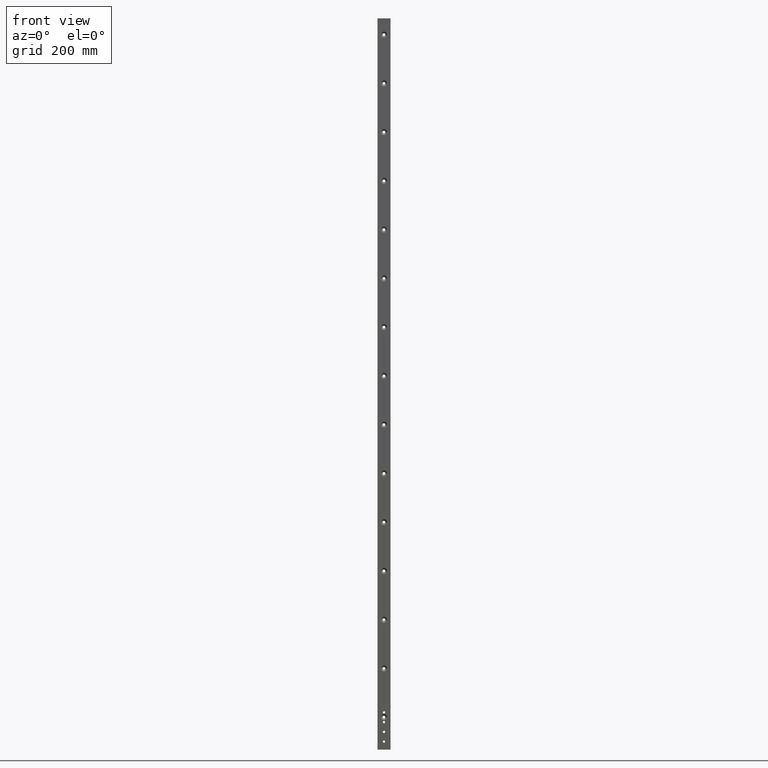
[diagram: clean part render]
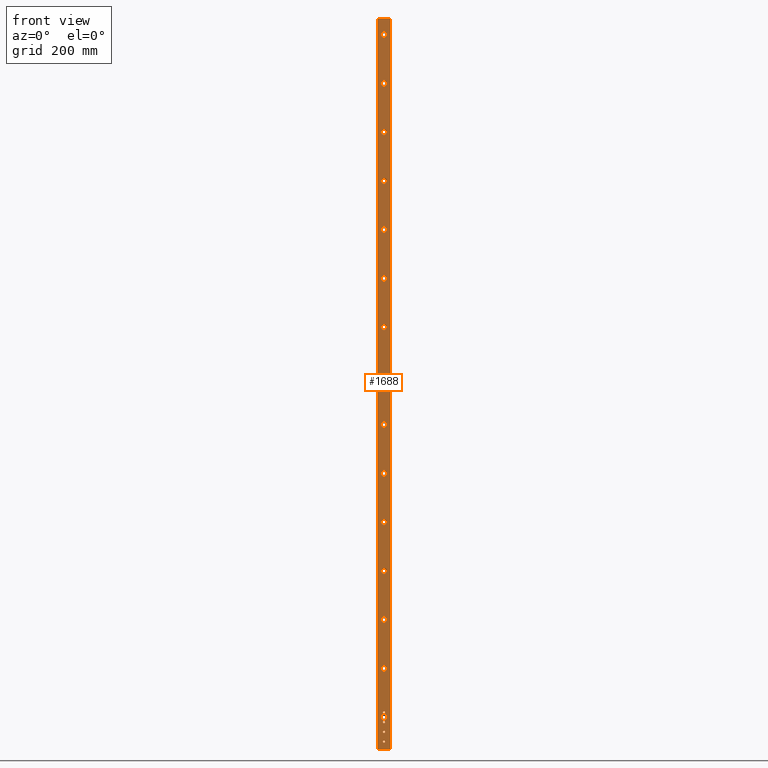
[diagram: same view with one face highlighted and labeled with its STEP entity id]
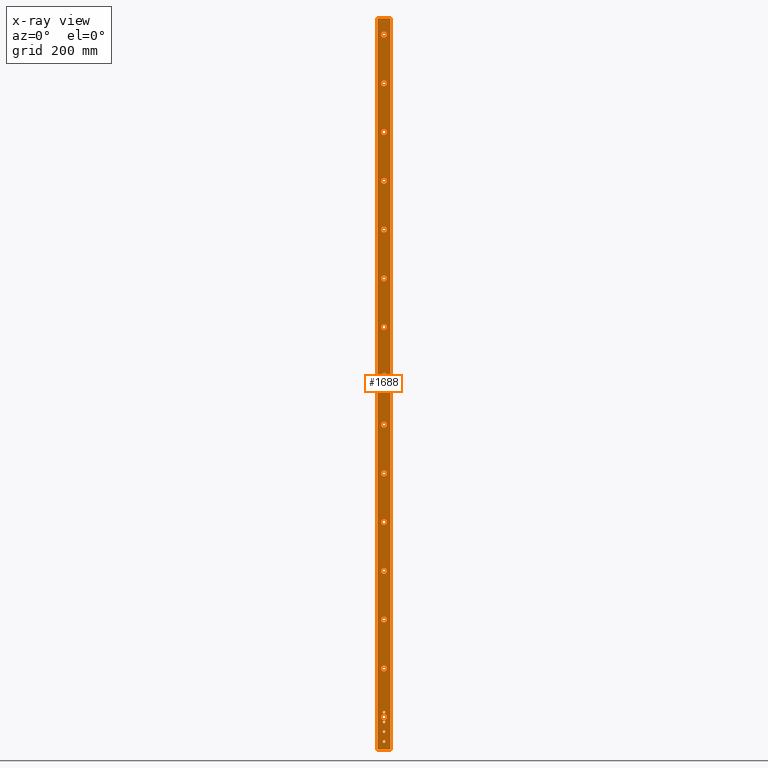
[diagram: x-ray of the same camera — body ghosted, the highlighted face saturated]
A machine part, front view. The second image highlights one B-rep face of the part: STEP entity #1688.
The next image is the same camera in x-ray: the body ghosted, the highlighted face saturated — about 0% of this face is hidden behind the body in this view.
In plain terms, the highlighted planar face has unit normal (0, -1, 0).
Its self-contained STEP definition (entity closure, byte-faithful):
#5 = CIRCLE ( 'NONE', #2308, 9.250000000000021300 ) ;
#14 = ORIENTED_EDGE ( 'NONE', *, *, #378, .F. ) ;
#32 = AXIS2_PLACEMENT_3D ( 'NONE', #677, #1135, #2180 ) ;
#54 = CARTESIAN_POINT ( 'NONE',  ( 6.958926556867956300E-032, -8.023096076392750600E-016, -499.9999999999999400 ) ) ;
#56 = FACE_BOUND ( 'NONE', #916, .T. ) ;
#63 = DIRECTION ( 'NONE',  ( 8.673617379884034200E-017, -1.000000000000000000, -0.0000000000000000000 ) ) ;
#68 = CIRCLE ( 'NONE', #952, 9.250000000000021300 ) ;
#85 = VERTEX_POINT ( 'NONE', #2253 ) ;
#108 = VERTEX_POINT ( 'NONE', #776 ) ;
#110 = EDGE_CURVE ( 'NONE', #1397, #2719, #959, .T. ) ;
#128 = DIRECTION ( 'NONE',  ( 8.673617379884034200E-017, -1.000000000000000000, -0.0000000000000000000 ) ) ;
#135 = AXIS2_PLACEMENT_3D ( 'NONE', #504, #2201, #1121 ) ;
#142 = CARTESIAN_POINT ( 'NONE',  ( -9.250000000000021300, -1.604619215278550100E-015, -1700.000000000000000 ) ) ;
#144 = ORIENTED_EDGE ( 'NONE', *, *, #2481, .F. ) ;
#145 = VERTEX_POINT ( 'NONE', #2296 ) ;
#152 = VERTEX_POINT ( 'NONE', #142 ) ;
#160 = DIRECTION ( 'NONE',  ( 8.673617379884034200E-017, -1.000000000000000000, -0.0000000000000000000 ) ) ;
#165 = EDGE_CURVE ( 'NONE', #323, #2654, #2618, .T. ) ;
#166 = CIRCLE ( 'NONE', #1319, 9.250000000000021300 ) ;
#169 = CARTESIAN_POINT ( 'NONE',  ( 9.250000000000021300, 0.0000000000000000000, -650.0000000000000000 ) ) ;
#171 = AXIS2_PLACEMENT_3D ( 'NONE', #1622, #336, #1246 ) ;
#176 = LINE ( 'NONE', #217, #955 ) ;
#182 = CARTESIAN_POINT ( 'NONE',  ( 6.958926556867956300E-032, -8.023096076392750600E-016, -350.0000000000000000 ) ) ;
#184 = CIRCLE ( 'NONE', #1813, 9.250000000000021300 ) ;
#189 = VERTEX_POINT ( 'NONE', #2071 ) ;
#200 = AXIS2_PLACEMENT_3D ( 'NONE', #2740, #1416, #985 ) ;
#203 = ORIENTED_EDGE ( 'NONE', *, *, #2061, .F. ) ;
#212 = ORIENTED_EDGE ( 'NONE', *, *, #1679, .F. ) ;
#216 = EDGE_CURVE ( 'NONE', #1327, #152, #5, .T. ) ;
#217 = CARTESIAN_POINT ( 'NONE',  ( -20.00000000000000000, 0.0000000000000000000, -2250.000000000000000 ) ) ;
#218 = DIRECTION ( 'NONE',  ( 8.673617379884034200E-017, -1.000000000000000000, -0.0000000000000000000 ) ) ;
#242 = CARTESIAN_POINT ( 'NONE',  ( 20.00000000000000000, 0.0000000000000000000, 0.0000000000000000000 ) ) ;
#246 = AXIS2_PLACEMENT_3D ( 'NONE', #2523, #580, #2728 ) ;
#249 = CARTESIAN_POINT ( 'NONE',  ( -7.933240598577817900E-016, 0.0000000000000000000, -2224.999999999999100 ) ) ;
#272 = CARTESIAN_POINT ( 'NONE',  ( -20.00000000000000000, 0.0000000000000000000, 0.0000000000000000000 ) ) ;
#297 = FACE_BOUND ( 'NONE', #1249, .T. ) ;
#298 = VERTEX_POINT ( 'NONE', #1286 ) ;
#301 = DIRECTION ( 'NONE',  ( 8.673617379884034200E-017, -1.000000000000000000, -0.0000000000000000000 ) ) ;
#320 = EDGE_CURVE ( 'NONE', #906, #402, #68, .T. ) ;
#321 = VERTEX_POINT ( 'NONE', #2597 ) ;
#323 = VERTEX_POINT ( 'NONE', #1301 ) ;
#324 = ORIENTED_EDGE ( 'NONE', *, *, #2132, .F. ) ;
#331 = CIRCLE ( 'NONE', #2548, 9.250000000000021300 ) ;
#332 = ORIENTED_EDGE ( 'NONE', *, *, #380, .F. ) ;
#333 = EDGE_LOOP ( 'NONE', ( #367, #2796 ) ) ;
#334 = DIRECTION ( 'NONE',  ( 8.673617379884034200E-017, -1.000000000000000000, -0.0000000000000000000 ) ) ;
#336 = DIRECTION ( 'NONE',  ( -0.0000000000000000000, 1.000000000000000000, -0.0000000000000000000 ) ) ;
#365 = ORIENTED_EDGE ( 'NONE', *, *, #841, .T. ) ;
#366 = LINE ( 'NONE', #272, #507 ) ;
#367 = ORIENTED_EDGE ( 'NONE', *, *, #479, .F. ) ;
#368 = CIRCLE ( 'NONE', #2171, 9.250000000000021300 ) ;
#373 = DIRECTION ( 'NONE',  ( 8.673617379884034200E-017, -1.000000000000000000, -0.0000000000000000000 ) ) ;
#378 = EDGE_CURVE ( 'NONE', #1657, #1529, #176, .T. ) ;
#380 = EDGE_CURVE ( 'NONE', #321, #1736, #1457, .T. ) ;
#382 = DIRECTION ( 'NONE',  ( 1.000000000000000000, 8.673617379884034200E-017, 0.0000000000000000000 ) ) ;
#394 = EDGE_LOOP ( 'NONE', ( #2748, #1994 ) ) ;
#396 = CARTESIAN_POINT ( 'NONE',  ( -9.250000000000021300, -1.604619215278550100E-015, -1550.000000000000000 ) ) ;
#397 = VERTEX_POINT ( 'NONE', #2402 ) ;
#402 = VERTEX_POINT ( 'NONE', #2200 ) ;
#403 = AXIS2_PLACEMENT_3D ( 'NONE', #2349, #852, #2569 ) ;
#428 = CIRCLE ( 'NONE', #246, 9.250000000000021300 ) ;
#431 = AXIS2_PLACEMENT_3D ( 'NONE', #571, #2103, #801 ) ;
#443 = ORIENTED_EDGE ( 'NONE', *, *, #2025, .F. ) ;
#447 = DIRECTION ( 'NONE',  ( 1.000000000000000000, 8.673617379884034200E-017, 0.0000000000000000000 ) ) ;
#449 = DIRECTION ( 'NONE',  ( 0.0000000000000000000, 0.0000000000000000000, -1.000000000000000000 ) ) ;
#463 = ORIENTED_EDGE ( 'NONE', *, *, #216, .F. ) ;
#466 = CARTESIAN_POINT ( 'NONE',  ( 6.958926556867956300E-032, -8.023096076392750600E-016, -1400.000000000000000 ) ) ;
#471 = EDGE_CURVE ( 'NONE', #85, #1343, #2408, .T. ) ;
#474 = FACE_BOUND ( 'NONE', #1829, .T. ) ;
#475 = DIRECTION ( 'NONE',  ( 1.000000000000000000, 8.673617379884034200E-017, 0.0000000000000000000 ) ) ;
#479 = EDGE_CURVE ( 'NONE', #397, #145, #1817, .T. ) ;
#483 = DIRECTION ( 'NONE',  ( 1.000000000000000000, 8.673617379884034200E-017, 0.0000000000000000000 ) ) ;
#496 = ORIENTED_EDGE ( 'NONE', *, *, #839, .F. ) ;
#504 = CARTESIAN_POINT ( 'NONE',  ( 6.958926556867956300E-032, -8.023096076392750600E-016, -1250.000000000000000 ) ) ;
#507 = VECTOR ( 'NONE', #710, 1000.000000000000000 ) ;
#508 = EDGE_CURVE ( 'NONE', #402, #906, #1531, .T. ) ;
#512 = AXIS2_PLACEMENT_3D ( 'NONE', #2377, #218, #483 ) ;
#514 = DIRECTION ( 'NONE',  ( 8.673617379884034200E-017, -1.000000000000000000, -0.0000000000000000000 ) ) ;
#524 = DIRECTION ( 'NONE',  ( 8.673617379884034200E-017, -1.000000000000000000, -0.0000000000000000000 ) ) ;
#525 = ORIENTED_EDGE ( 'NONE', *, *, #2397, .F. ) ;
#544 = EDGE_CURVE ( 'NONE', #1343, #85, #2676, .T. ) ;
#547 = AXIS2_PLACEMENT_3D ( 'NONE', #1896, #1493, #825 ) ;
#564 = ORIENTED_EDGE ( 'NONE', *, *, #320, .F. ) ;
#571 = CARTESIAN_POINT ( 'NONE',  ( 6.958926556867956300E-032, -8.023096076392750600E-016, -1100.000000000000000 ) ) ;
#580 = DIRECTION ( 'NONE',  ( 8.673617379884034200E-017, -1.000000000000000000, -0.0000000000000000000 ) ) ;
#585 = ORIENTED_EDGE ( 'NONE', *, *, #2452, .F. ) ;
#588 = CIRCLE ( 'NONE', #2703, 9.250000000000021300 ) ;
#589 = AXIS2_PLACEMENT_3D ( 'NONE', #2042, #2707, #2506 ) ;
#593 = CARTESIAN_POINT ( 'NONE',  ( 6.958926556867956300E-032, -8.023096076392750600E-016, -1100.000000000000000 ) ) ;
#595 = ORIENTED_EDGE ( 'NONE', *, *, #1365, .F. ) ;
#597 = ORIENTED_EDGE ( 'NONE', *, *, #165, .F. ) ;
#598 = CARTESIAN_POINT ( 'NONE',  ( 9.250000000000021300, 0.0000000000000000000, -1700.000000000000000 ) ) ;
#613 = AXIS2_PLACEMENT_3D ( 'NONE', #2314, #803, #2519 ) ;
#619 = DIRECTION ( 'NONE',  ( 8.673617379884034200E-017, -1.000000000000000000, -0.0000000000000000000 ) ) ;
#620 = CARTESIAN_POINT ( 'NONE',  ( 9.250000000000021300, 0.0000000000000000000, -1400.000000000000000 ) ) ;
#634 = VERTEX_POINT ( 'NONE', #2522 ) ;
#635 = FACE_BOUND ( 'NONE', #2092, .T. ) ;
#636 = ORIENTED_EDGE ( 'NONE', *, *, #1413, .F. ) ;
#641 = DIRECTION ( 'NONE',  ( 8.673617379884034200E-017, -1.000000000000000000, -0.0000000000000000000 ) ) ;
#645 = DIRECTION ( 'NONE',  ( 1.000000000000000000, 0.0000000000000000000, 0.0000000000000000000 ) ) ;
#659 = DIRECTION ( 'NONE',  ( 0.0000000000000000000, 0.0000000000000000000, 1.000000000000000000 ) ) ;
#660 = EDGE_CURVE ( 'NONE', #298, #1904, #681, .T. ) ;
#671 = DIRECTION ( 'NONE',  ( 0.0000000000000000000, 0.0000000000000000000, 1.000000000000000000 ) ) ;
#677 = CARTESIAN_POINT ( 'NONE',  ( 6.958926556867956300E-032, -8.023096076392750600E-016, -200.0000000000000000 ) ) ;
#681 = CIRCLE ( 'NONE', #2096, 9.250000000000021300 ) ;
#682 = CARTESIAN_POINT ( 'NONE',  ( -20.00000000000000000, 0.0000000000000000000, 0.0000000000000000000 ) ) ;
#699 = ORIENTED_EDGE ( 'NONE', *, *, #2483, .F. ) ;
#706 = EDGE_LOOP ( 'NONE', ( #585, #144 ) ) ;
#710 = DIRECTION ( 'NONE',  ( 1.000000000000000000, 0.0000000000000000000, 0.0000000000000000000 ) ) ;
#724 = DIRECTION ( 'NONE',  ( -0.0000000000000000000, 1.000000000000000000, -0.0000000000000000000 ) ) ;
#726 = VERTEX_POINT ( 'NONE', #750 ) ;
#730 = CARTESIAN_POINT ( 'NONE',  ( -9.250000000000021300, -1.604619215278550100E-015, -50.00000000000000000 ) ) ;
#733 = FACE_BOUND ( 'NONE', #2322, .T. ) ;
#737 = AXIS2_PLACEMENT_3D ( 'NONE', #2527, #2285, #382 ) ;
#739 = CARTESIAN_POINT ( 'NONE',  ( -20.00000000000000000, 0.0000000000000000000, -2250.000000000000000 ) ) ;
#747 = EDGE_CURVE ( 'NONE', #2261, #2486, #2708, .T. ) ;
#750 = CARTESIAN_POINT ( 'NONE',  ( 9.250000000000021300, 0.0000000000000000000, -50.00000000000000000 ) ) ;
#753 = EDGE_CURVE ( 'NONE', #1172, #726, #166, .T. ) ;
#776 = CARTESIAN_POINT ( 'NONE',  ( -9.250000000000021300, -1.604619215278550100E-015, -1849.999999999999800 ) ) ;
#777 = CARTESIAN_POINT ( 'NONE',  ( 6.958926556867956300E-032, -8.023096076392750600E-016, -50.00000000000000000 ) ) ;
#783 = EDGE_LOOP ( 'NONE', ( #1781, #699 ) ) ;
#785 = CARTESIAN_POINT ( 'NONE',  ( 6.958926556867956300E-032, -8.023096076392750600E-016, -350.0000000000000000 ) ) ;
#786 = CARTESIAN_POINT ( 'NONE',  ( -9.250000000000021300, -1.604619215278550100E-015, -2000.000000000000000 ) ) ;
#792 = ORIENTED_EDGE ( 'NONE', *, *, #1866, .F. ) ;
#795 = EDGE_LOOP ( 'NONE', ( #1362, #968 ) ) ;
#801 = DIRECTION ( 'NONE',  ( 1.000000000000000000, 8.673617379884034200E-017, 0.0000000000000000000 ) ) ;
#803 = DIRECTION ( 'NONE',  ( 8.673617379884034200E-017, -1.000000000000000000, -0.0000000000000000000 ) ) ;
#811 = CIRCLE ( 'NONE', #512, 9.250000000000021300 ) ;
#814 = ORIENTED_EDGE ( 'NONE', *, *, #1176, .F. ) ;
#825 = DIRECTION ( 'NONE',  ( 0.0000000000000000000, 0.0000000000000000000, -1.000000000000000000 ) ) ;
#829 = CIRCLE ( 'NONE', #1972, 9.250000000000021300 ) ;
#839 = EDGE_CURVE ( 'NONE', #1442, #1792, #1645, .T. ) ;
#841 = EDGE_CURVE ( 'NONE', #2242, #2268, #1449, .T. ) ;
#852 = DIRECTION ( 'NONE',  ( 8.673617379884034200E-017, -1.000000000000000000, -0.0000000000000000000 ) ) ;
#873 = FACE_BOUND ( 'NONE', #2214, .T. ) ;
#874 = CARTESIAN_POINT ( 'NONE',  ( 6.958926556867956300E-032, -8.023096076392750600E-016, -2000.000000000000000 ) ) ;
#889 = EDGE_LOOP ( 'NONE', ( #443, #332 ) ) ;
#895 = DIRECTION ( 'NONE',  ( 0.0000000000000000000, 0.0000000000000000000, -1.000000000000000000 ) ) ;
#900 = DIRECTION ( 'NONE',  ( 1.000000000000000000, 8.673617379884034200E-017, 0.0000000000000000000 ) ) ;
#906 = VERTEX_POINT ( 'NONE', #1287 ) ;
#910 = CARTESIAN_POINT ( 'NONE',  ( 6.958926556867956300E-032, -8.023096076392750600E-016, -50.00000000000000000 ) ) ;
#916 = EDGE_LOOP ( 'NONE', ( #1721, #203 ) ) ;
#930 = CARTESIAN_POINT ( 'NONE',  ( 6.958926556867956300E-032, -8.023096076392750600E-016, -1400.000000000000000 ) ) ;
#937 = AXIS2_PLACEMENT_3D ( 'NONE', #249, #2188, #895 ) ;
#943 = CARTESIAN_POINT ( 'NONE',  ( 6.958926556867956300E-032, -8.023096076392750600E-016, -650.0000000000000000 ) ) ;
#946 = DIRECTION ( 'NONE',  ( 1.000000000000000000, 8.673617379884034200E-017, 0.0000000000000000000 ) ) ;
#947 = DIRECTION ( 'NONE',  ( 1.000000000000000000, 8.673617379884034200E-017, 0.0000000000000000000 ) ) ;
#952 = AXIS2_PLACEMENT_3D ( 'NONE', #182, #641, #2802 ) ;
#955 = VECTOR ( 'NONE', #671, 1000.000000000000000 ) ;
#957 = DIRECTION ( 'NONE',  ( -0.0000000000000000000, 1.000000000000000000, -0.0000000000000000000 ) ) ;
#959 = CIRCLE ( 'NONE', #171, 4.400000000000403600 ) ;
#968 = ORIENTED_EDGE ( 'NONE', *, *, #471, .T. ) ;
#982 = EDGE_CURVE ( 'NONE', #2789, #634, #811, .T. ) ;
#985 = DIRECTION ( 'NONE',  ( 1.000000000000000000, 8.673617379884034200E-017, 0.0000000000000000000 ) ) ;
#1001 = EDGE_LOOP ( 'NONE', ( #2690, #525 ) ) ;
#1002 = FACE_BOUND ( 'NONE', #333, .T. ) ;
#1032 = CIRCLE ( 'NONE', #2123, 9.250000000000021300 ) ;
#1035 = VERTEX_POINT ( 'NONE', #2176 ) ;
#1040 = FACE_BOUND ( 'NONE', #394, .T. ) ;
#1041 = DIRECTION ( 'NONE',  ( 8.673617379884034200E-017, -1.000000000000000000, -0.0000000000000000000 ) ) ;
#1046 = AXIS2_PLACEMENT_3D ( 'NONE', #2329, #619, #2116 ) ;
#1056 = EDGE_CURVE ( 'NONE', #2719, #1397, #2771, .T. ) ;
#1066 = CARTESIAN_POINT ( 'NONE',  ( -9.250000000000021300, -1.604619215278550100E-015, -800.0000000000000000 ) ) ;
#1082 = CARTESIAN_POINT ( 'NONE',  ( -20.00000000000000000, 0.0000000000000000000, -2250.000000000000000 ) ) ;
#1094 = CIRCLE ( 'NONE', #2786, 4.400000000000403600 ) ;
#1103 = CARTESIAN_POINT ( 'NONE',  ( 9.250000000000021300, 0.0000000000000000000, -1100.000000000000000 ) ) ;
#1105 = FACE_BOUND ( 'NONE', #706, .T. ) ;
#1107 = CARTESIAN_POINT ( 'NONE',  ( 9.250000000000021300, 0.0000000000000000000, -800.0000000000000000 ) ) ;
#1121 = DIRECTION ( 'NONE',  ( 1.000000000000000000, 8.673617379884034200E-017, 0.0000000000000000000 ) ) ;
#1122 = DIRECTION ( 'NONE',  ( 8.673617379884034200E-017, -1.000000000000000000, -0.0000000000000000000 ) ) ;
#1127 = DIRECTION ( 'NONE',  ( 8.673617379884034200E-017, -1.000000000000000000, -0.0000000000000000000 ) ) ;
#1134 = LINE ( 'NONE', #1506, #2075 ) ;
#1135 = DIRECTION ( 'NONE',  ( 8.673617379884034200E-017, -1.000000000000000000, -0.0000000000000000000 ) ) ;
#1136 = VERTEX_POINT ( 'NONE', #1582 ) ;
#1138 = CIRCLE ( 'NONE', #2299, 9.250000000000021300 ) ;
#1141 = DIRECTION ( 'NONE',  ( 1.000000000000000000, 8.673617379884034200E-017, 0.0000000000000000000 ) ) ;
#1152 = DIRECTION ( 'NONE',  ( 8.673617379884034200E-017, -1.000000000000000000, -0.0000000000000000000 ) ) ;
#1154 = DIRECTION ( 'NONE',  ( 1.000000000000000000, 8.673617379884034200E-017, 0.0000000000000000000 ) ) ;
#1160 = AXIS2_PLACEMENT_3D ( 'NONE', #739, #2241, #1808 ) ;
#1161 = CIRCLE ( 'NONE', #1588, 9.250000000000021300 ) ;
#1164 = EDGE_LOOP ( 'NONE', ( #595, #1831 ) ) ;
#1172 = VERTEX_POINT ( 'NONE', #730 ) ;
#1176 = EDGE_CURVE ( 'NONE', #2486, #2261, #2629, .T. ) ;
#1178 = CIRCLE ( 'NONE', #1494, 9.250000000000021300 ) ;
#1201 = EDGE_CURVE ( 'NONE', #152, #1327, #1161, .T. ) ;
#1219 = EDGE_LOOP ( 'NONE', ( #1828, #1265 ) ) ;
#1221 = EDGE_CURVE ( 'NONE', #1544, #1369, #1933, .T. ) ;
#1234 = CIRCLE ( 'NONE', #613, 9.250000000000021300 ) ;
#1246 = DIRECTION ( 'NONE',  ( 0.0000000000000000000, 0.0000000000000000000, -1.000000000000000000 ) ) ;
#1249 = EDGE_LOOP ( 'NONE', ( #564, #1943 ) ) ;
#1265 = ORIENTED_EDGE ( 'NONE', *, *, #2579, .T. ) ;
#1268 = CARTESIAN_POINT ( 'NONE',  ( 2.880616337584308800E-015, 0.0000000000000000000, -2199.399999999999600 ) ) ;
#1273 = CARTESIAN_POINT ( 'NONE',  ( 9.250000000000021300, 0.0000000000000000000, -499.9999999999999400 ) ) ;
#1276 = VERTEX_POINT ( 'NONE', #786 ) ;
#1278 = EDGE_CURVE ( 'NONE', #1792, #1442, #2525, .T. ) ;
#1281 = ORIENTED_EDGE ( 'NONE', *, *, #1278, .F. ) ;
#1286 = CARTESIAN_POINT ( 'NONE',  ( 9.250000000000021300, 0.0000000000000000000, -950.0000000000000000 ) ) ;
#1287 = CARTESIAN_POINT ( 'NONE',  ( 9.250000000000021300, 0.0000000000000000000, -350.0000000000000000 ) ) ;
#1290 = DIRECTION ( 'NONE',  ( 8.673617379884034200E-017, -1.000000000000000000, -0.0000000000000000000 ) ) ;
#1301 = CARTESIAN_POINT ( 'NONE',  ( -9.250000000000021300, -1.604619215278550100E-015, -1100.000000000000000 ) ) ;
#1319 = AXIS2_PLACEMENT_3D ( 'NONE', #777, #128, #1632 ) ;
#1327 = VERTEX_POINT ( 'NONE', #598 ) ;
#1343 = VERTEX_POINT ( 'NONE', #1268 ) ;
#1349 = ORIENTED_EDGE ( 'NONE', *, *, #2289, .T. ) ;
#1352 = CARTESIAN_POINT ( 'NONE',  ( 9.250000000000021300, 0.0000000000000000000, -200.0000000000000000 ) ) ;
#1362 = ORIENTED_EDGE ( 'NONE', *, *, #544, .T. ) ;
#1365 = EDGE_CURVE ( 'NONE', #2436, #108, #1178, .T. ) ;
#1369 = VERTEX_POINT ( 'NONE', #1676 ) ;
#1370 = CIRCLE ( 'NONE', #1723, 4.400000000000403600 ) ;
#1385 = AXIS2_PLACEMENT_3D ( 'NONE', #466, #1127, #447 ) ;
#1393 = VERTEX_POINT ( 'NONE', #396 ) ;
#1397 = VERTEX_POINT ( 'NONE', #2336 ) ;
#1413 = EDGE_CURVE ( 'NONE', #1728, #1393, #1671, .T. ) ;
#1416 = DIRECTION ( 'NONE',  ( 8.673617379884034200E-017, -1.000000000000000000, -0.0000000000000000000 ) ) ;
#1437 = FACE_BOUND ( 'NONE', #795, .T. ) ;
#1442 = VERTEX_POINT ( 'NONE', #1107 ) ;
#1449 = CIRCLE ( 'NONE', #547, 4.400000000000403600 ) ;
#1457 = CIRCLE ( 'NONE', #1385, 9.250000000000021300 ) ;
#1491 = AXIS2_PLACEMENT_3D ( 'NONE', #785, #334, #2494 ) ;
#1493 = DIRECTION ( 'NONE',  ( -0.0000000000000000000, 1.000000000000000000, -0.0000000000000000000 ) ) ;
#1494 = AXIS2_PLACEMENT_3D ( 'NONE', #2367, #1290, #2111 ) ;
#1497 = VERTEX_POINT ( 'NONE', #242 ) ;
#1504 = DIRECTION ( 'NONE',  ( 1.000000000000000000, 8.673617379884034200E-017, 0.0000000000000000000 ) ) ;
#1506 = CARTESIAN_POINT ( 'NONE',  ( 20.00000000000000000, 0.0000000000000000000, -2250.000000000000000 ) ) ;
#1512 = LINE ( 'NONE', #1082, #2129 ) ;
#1523 = DIRECTION ( 'NONE',  ( 1.000000000000000000, 8.673617379884034200E-017, 0.0000000000000000000 ) ) ;
#1529 = VERTEX_POINT ( 'NONE', #682 ) ;
#1531 = CIRCLE ( 'NONE', #1491, 9.250000000000021300 ) ;
#1532 = EDGE_CURVE ( 'NONE', #1657, #189, #1512, .T. ) ;
#1544 = VERTEX_POINT ( 'NONE', #1959 ) ;
#1546 = CARTESIAN_POINT ( 'NONE',  ( -9.250000000000021300, -1.604619215278550100E-015, -499.9999999999999400 ) ) ;
#1567 = DIRECTION ( 'NONE',  ( 8.673617379884034200E-017, -1.000000000000000000, -0.0000000000000000000 ) ) ;
#1582 = CARTESIAN_POINT ( 'NONE',  ( -9.250000000000021300, -1.604619215278550100E-015, -200.0000000000000000 ) ) ;
#1583 = CARTESIAN_POINT ( 'NONE',  ( 6.958926556867956300E-032, -8.023096076392750600E-016, -1849.999999999999800 ) ) ;
#1586 = EDGE_CURVE ( 'NONE', #145, #397, #368, .T. ) ;
#1588 = AXIS2_PLACEMENT_3D ( 'NONE', #2233, #2465, #947 ) ;
#1593 = CARTESIAN_POINT ( 'NONE',  ( -7.933240598577817900E-016, 0.0000000000000000000, -2229.399999999999600 ) ) ;
#1594 = VERTEX_POINT ( 'NONE', #1546 ) ;
#1600 = DIRECTION ( 'NONE',  ( -0.0000000000000000000, 1.000000000000000000, -0.0000000000000000000 ) ) ;
#1608 = FACE_BOUND ( 'NONE', #1219, .T. ) ;
#1610 = ORIENTED_EDGE ( 'NONE', *, *, #982, .F. ) ;
#1622 = CARTESIAN_POINT ( 'NONE',  ( -7.933240598577817900E-016, 0.0000000000000000000, -2224.999999999999100 ) ) ;
#1632 = DIRECTION ( 'NONE',  ( 1.000000000000000000, 8.673617379884034200E-017, 0.0000000000000000000 ) ) ;
#1634 = ORIENTED_EDGE ( 'NONE', *, *, #747, .F. ) ;
#1645 = CIRCLE ( 'NONE', #1046, 9.250000000000021300 ) ;
#1648 = DIRECTION ( 'NONE',  ( 1.000000000000000000, 8.673617379884034200E-017, 0.0000000000000000000 ) ) ;
#1657 = VERTEX_POINT ( 'NONE', #2005 ) ;
#1671 = CIRCLE ( 'NONE', #403, 9.250000000000021300 ) ;
#1676 = CARTESIAN_POINT ( 'NONE',  ( 7.093401326651176000E-015, 0.0000000000000000000, -2160.599999999999000 ) ) ;
#1679 = EDGE_CURVE ( 'NONE', #1529, #1497, #366, .T. ) ;
#1688 = ADVANCED_FACE ( 'NONE', ( #1040, #2252, #1437, #1608, #1002, #2220, #2021, #474, #635, #2697, #873, #2736, #56, #733, #2087, #2157, #297, #1105, #1874, #1951 ), #2033, .T. ) ;
#1721 = ORIENTED_EDGE ( 'NONE', *, *, #660, .F. ) ;
#1723 = AXIS2_PLACEMENT_3D ( 'NONE', #2039, #1600, #2430 ) ;
#1728 = VERTEX_POINT ( 'NONE', #2330 ) ;
#1736 = VERTEX_POINT ( 'NONE', #620 ) ;
#1764 = AXIS2_PLACEMENT_3D ( 'NONE', #1880, #2761, #2549 ) ;
#1777 = ORIENTED_EDGE ( 'NONE', *, *, #2017, .F. ) ;
#1781 = ORIENTED_EDGE ( 'NONE', *, *, #2501, .F. ) ;
#1783 = EDGE_LOOP ( 'NONE', ( #1610, #1777 ) ) ;
#1785 = DIRECTION ( 'NONE',  ( 1.000000000000000000, 8.673617379884034200E-017, 0.0000000000000000000 ) ) ;
#1792 = VERTEX_POINT ( 'NONE', #1066 ) ;
#1793 = DIRECTION ( 'NONE',  ( 0.0000000000000000000, 0.0000000000000000000, -1.000000000000000000 ) ) ;
#1798 = VERTEX_POINT ( 'NONE', #1273 ) ;
#1808 = DIRECTION ( 'NONE',  ( 0.0000000000000000000, -0.0000000000000000000, -1.000000000000000000 ) ) ;
#1813 = AXIS2_PLACEMENT_3D ( 'NONE', #593, #1041, #1648 ) ;
#1817 = CIRCLE ( 'NONE', #2694, 9.250000000000021300 ) ;
#1828 = ORIENTED_EDGE ( 'NONE', *, *, #1221, .T. ) ;
#1829 = EDGE_LOOP ( 'NONE', ( #463, #2550 ) ) ;
#1831 = ORIENTED_EDGE ( 'NONE', *, *, #1968, .F. ) ;
#1866 = EDGE_CURVE ( 'NONE', #726, #1172, #331, .T. ) ;
#1874 = FACE_BOUND ( 'NONE', #2050, .T. ) ;
#1880 = CARTESIAN_POINT ( 'NONE',  ( 6.958926556867956300E-032, -8.023096076392750600E-016, -200.0000000000000000 ) ) ;
#1896 = CARTESIAN_POINT ( 'NONE',  ( 1.022849713246833500E-014, 0.0000000000000000000, -2135.000000000000000 ) ) ;
#1901 = EDGE_LOOP ( 'NONE', ( #2724, #597 ) ) ;
#1904 = VERTEX_POINT ( 'NONE', #2804 ) ;
#1918 = AXIS2_PLACEMENT_3D ( 'NONE', #54, #2632, #475 ) ;
#1933 = CIRCLE ( 'NONE', #2370, 4.400000000000403600 ) ;
#1942 = DIRECTION ( 'NONE',  ( -0.0000000000000000000, 1.000000000000000000, -0.0000000000000000000 ) ) ;
#1943 = ORIENTED_EDGE ( 'NONE', *, *, #508, .F. ) ;
#1951 = FACE_OUTER_BOUND ( 'NONE', #2386, .T. ) ;
#1956 = CARTESIAN_POINT ( 'NONE',  ( 6.554556735026291500E-015, 0.0000000000000000000, -2164.999999999999500 ) ) ;
#1959 = CARTESIAN_POINT ( 'NONE',  ( 6.554556735026291500E-015, 0.0000000000000000000, -2169.400000000000100 ) ) ;
#1966 = CARTESIAN_POINT ( 'NONE',  ( 6.554556735026291500E-015, 0.0000000000000000000, -2164.999999999999500 ) ) ;
#1968 = EDGE_CURVE ( 'NONE', #108, #2436, #2216, .T. ) ;
#1972 = AXIS2_PLACEMENT_3D ( 'NONE', #943, #1122, #2000 ) ;
#1990 = CARTESIAN_POINT ( 'NONE',  ( 1.022849713246833500E-014, 0.0000000000000000000, -2139.400000000000100 ) ) ;
#1994 = ORIENTED_EDGE ( 'NONE', *, *, #110, .T. ) ;
#1997 = CARTESIAN_POINT ( 'NONE',  ( 6.958926556867956300E-032, -8.023096076392750600E-016, -2150.000000000000000 ) ) ;
#2000 = DIRECTION ( 'NONE',  ( 1.000000000000000000, 8.673617379884034200E-017, 0.0000000000000000000 ) ) ;
#2005 = CARTESIAN_POINT ( 'NONE',  ( -20.00000000000000000, 0.0000000000000000000, -2250.000000000000000 ) ) ;
#2017 = EDGE_CURVE ( 'NONE', #634, #2789, #829, .T. ) ;
#2021 = FACE_BOUND ( 'NONE', #1164, .T. ) ;
#2025 = EDGE_CURVE ( 'NONE', #1736, #321, #1138, .T. ) ;
#2033 = PLANE ( 'NONE',  #1160 ) ;
#2039 = CARTESIAN_POINT ( 'NONE',  ( 1.022849713246833500E-014, 0.0000000000000000000, -2135.000000000000000 ) ) ;
#2042 = CARTESIAN_POINT ( 'NONE',  ( 2.880616337584308800E-015, 0.0000000000000000000, -2194.999999999999500 ) ) ;
#2043 = CARTESIAN_POINT ( 'NONE',  ( 6.958926556867956300E-032, -8.023096076392750600E-016, -950.0000000000000000 ) ) ;
#2050 = EDGE_LOOP ( 'NONE', ( #792, #2073 ) ) ;
#2057 = DIRECTION ( 'NONE',  ( 1.000000000000000000, 8.673617379884034200E-017, 0.0000000000000000000 ) ) ;
#2061 = EDGE_CURVE ( 'NONE', #1904, #298, #2421, .T. ) ;
#2071 = CARTESIAN_POINT ( 'NONE',  ( 20.00000000000000000, 0.0000000000000000000, -2250.000000000000000 ) ) ;
#2073 = ORIENTED_EDGE ( 'NONE', *, *, #753, .F. ) ;
#2075 = VECTOR ( 'NONE', #659, 1000.000000000000000 ) ;
#2087 = FACE_BOUND ( 'NONE', #1783, .T. ) ;
#2092 = EDGE_LOOP ( 'NONE', ( #636, #324 ) ) ;
#2096 = AXIS2_PLACEMENT_3D ( 'NONE', #2372, #2422, #2478 ) ;
#2098 = CARTESIAN_POINT ( 'NONE',  ( 9.250000000000021300, 0.0000000000000000000, -1849.999999999999800 ) ) ;
#2103 = DIRECTION ( 'NONE',  ( 8.673617379884034200E-017, -1.000000000000000000, -0.0000000000000000000 ) ) ;
#2111 = DIRECTION ( 'NONE',  ( 1.000000000000000000, 8.673617379884034200E-017, 0.0000000000000000000 ) ) ;
#2116 = DIRECTION ( 'NONE',  ( 1.000000000000000000, 8.673617379884034200E-017, 0.0000000000000000000 ) ) ;
#2123 = AXIS2_PLACEMENT_3D ( 'NONE', #2194, #1567, #900 ) ;
#2124 = ORIENTED_EDGE ( 'NONE', *, *, #1532, .T. ) ;
#2129 = VECTOR ( 'NONE', #645, 1000.000000000000000 ) ;
#2132 = EDGE_CURVE ( 'NONE', #1393, #1728, #428, .T. ) ;
#2144 = CARTESIAN_POINT ( 'NONE',  ( 9.250000000000021300, 0.0000000000000000000, -1250.000000000000000 ) ) ;
#2156 = AXIS2_PLACEMENT_3D ( 'NONE', #2043, #524, #2057 ) ;
#2157 = FACE_BOUND ( 'NONE', #783, .T. ) ;
#2171 = AXIS2_PLACEMENT_3D ( 'NONE', #1997, #1152, #1141 ) ;
#2172 = CARTESIAN_POINT ( 'NONE',  ( -9.250000000000021300, -1.604619215278550100E-015, -1250.000000000000000 ) ) ;
#2176 = CARTESIAN_POINT ( 'NONE',  ( 9.250000000000021300, 0.0000000000000000000, -2000.000000000000000 ) ) ;
#2179 = CIRCLE ( 'NONE', #1918, 9.250000000000021300 ) ;
#2180 = DIRECTION ( 'NONE',  ( 1.000000000000000000, 8.673617379884034200E-017, 0.0000000000000000000 ) ) ;
#2188 = DIRECTION ( 'NONE',  ( -0.0000000000000000000, 1.000000000000000000, -0.0000000000000000000 ) ) ;
#2194 = CARTESIAN_POINT ( 'NONE',  ( 6.958926556867956300E-032, -8.023096076392750600E-016, -499.9999999999999400 ) ) ;
#2200 = CARTESIAN_POINT ( 'NONE',  ( -9.250000000000021300, -1.604619215278550100E-015, -350.0000000000000000 ) ) ;
#2201 = DIRECTION ( 'NONE',  ( 8.673617379884034200E-017, -1.000000000000000000, -0.0000000000000000000 ) ) ;
#2212 = CARTESIAN_POINT ( 'NONE',  ( 2.880616337584308800E-015, 0.0000000000000000000, -2194.999999999999500 ) ) ;
#2214 = EDGE_LOOP ( 'NONE', ( #1634, #814 ) ) ;
#2216 = CIRCLE ( 'NONE', #2648, 9.250000000000021300 ) ;
#2220 = FACE_BOUND ( 'NONE', #1001, .T. ) ;
#2233 = CARTESIAN_POINT ( 'NONE',  ( 6.958926556867956300E-032, -8.023096076392750600E-016, -1700.000000000000000 ) ) ;
#2240 = CIRCLE ( 'NONE', #1764, 9.250000000000021300 ) ;
#2241 = DIRECTION ( 'NONE',  ( 0.0000000000000000000, -1.000000000000000000, 0.0000000000000000000 ) ) ;
#2242 = VERTEX_POINT ( 'NONE', #2787 ) ;
#2252 = FACE_BOUND ( 'NONE', #2651, .T. ) ;
#2253 = CARTESIAN_POINT ( 'NONE',  ( 3.419460929209193700E-015, 0.0000000000000000000, -2190.599999999999000 ) ) ;
#2261 = VERTEX_POINT ( 'NONE', #2144 ) ;
#2268 = VERTEX_POINT ( 'NONE', #1990 ) ;
#2274 = DIRECTION ( 'NONE',  ( 0.0000000000000000000, 0.0000000000000000000, -1.000000000000000000 ) ) ;
#2285 = DIRECTION ( 'NONE',  ( 8.673617379884034200E-017, -1.000000000000000000, -0.0000000000000000000 ) ) ;
#2289 = EDGE_CURVE ( 'NONE', #2268, #2242, #1370, .T. ) ;
#2296 = CARTESIAN_POINT ( 'NONE',  ( -9.250000000000021300, -1.604619215278550100E-015, -2150.000000000000000 ) ) ;
#2299 = AXIS2_PLACEMENT_3D ( 'NONE', #930, #63, #1785 ) ;
#2308 = AXIS2_PLACEMENT_3D ( 'NONE', #2534, #160, #2779 ) ;
#2314 = CARTESIAN_POINT ( 'NONE',  ( 6.958926556867956300E-032, -8.023096076392750600E-016, -2000.000000000000000 ) ) ;
#2322 = EDGE_LOOP ( 'NONE', ( #496, #1281 ) ) ;
#2329 = CARTESIAN_POINT ( 'NONE',  ( 6.958926556867956300E-032, -8.023096076392750600E-016, -800.0000000000000000 ) ) ;
#2330 = CARTESIAN_POINT ( 'NONE',  ( 9.250000000000021300, 0.0000000000000000000, -1550.000000000000000 ) ) ;
#2336 = CARTESIAN_POINT ( 'NONE',  ( -2.544794682328969900E-016, 0.0000000000000000000, -2220.599999999999000 ) ) ;
#2349 = CARTESIAN_POINT ( 'NONE',  ( 6.958926556867956300E-032, -8.023096076392750600E-016, -1550.000000000000000 ) ) ;
#2367 = CARTESIAN_POINT ( 'NONE',  ( 6.958926556867956300E-032, -8.023096076392750600E-016, -1849.999999999999800 ) ) ;
#2370 = AXIS2_PLACEMENT_3D ( 'NONE', #1966, #724, #2274 ) ;
#2372 = CARTESIAN_POINT ( 'NONE',  ( 6.958926556867956300E-032, -8.023096076392750600E-016, -950.0000000000000000 ) ) ;
#2377 = CARTESIAN_POINT ( 'NONE',  ( 6.958926556867956300E-032, -8.023096076392750600E-016, -650.0000000000000000 ) ) ;
#2386 = EDGE_LOOP ( 'NONE', ( #212, #14, #2124, #2754 ) ) ;
#2397 = EDGE_CURVE ( 'NONE', #1276, #1035, #1234, .T. ) ;
#2402 = CARTESIAN_POINT ( 'NONE',  ( 9.250000000000021300, 0.0000000000000000000, -2150.000000000000000 ) ) ;
#2408 = CIRCLE ( 'NONE', #2541, 4.400000000000403600 ) ;
#2411 = DIRECTION ( 'NONE',  ( 8.673617379884034200E-017, -1.000000000000000000, -0.0000000000000000000 ) ) ;
#2416 = EDGE_CURVE ( 'NONE', #2654, #323, #184, .T. ) ;
#2421 = CIRCLE ( 'NONE', #2156, 9.250000000000021300 ) ;
#2422 = DIRECTION ( 'NONE',  ( 8.673617379884034200E-017, -1.000000000000000000, -0.0000000000000000000 ) ) ;
#2430 = DIRECTION ( 'NONE',  ( 0.0000000000000000000, 0.0000000000000000000, -1.000000000000000000 ) ) ;
#2434 = EDGE_CURVE ( 'NONE', #1035, #1276, #588, .T. ) ;
#2436 = VERTEX_POINT ( 'NONE', #2098 ) ;
#2452 = EDGE_CURVE ( 'NONE', #2659, #1136, #2240, .T. ) ;
#2465 = DIRECTION ( 'NONE',  ( 8.673617379884034200E-017, -1.000000000000000000, -0.0000000000000000000 ) ) ;
#2478 = DIRECTION ( 'NONE',  ( 1.000000000000000000, 8.673617379884034200E-017, 0.0000000000000000000 ) ) ;
#2481 = EDGE_CURVE ( 'NONE', #1136, #2659, #2757, .T. ) ;
#2483 = EDGE_CURVE ( 'NONE', #1594, #1798, #2179, .T. ) ;
#2486 = VERTEX_POINT ( 'NONE', #2172 ) ;
#2494 = DIRECTION ( 'NONE',  ( 1.000000000000000000, 8.673617379884034200E-017, 0.0000000000000000000 ) ) ;
#2501 = EDGE_CURVE ( 'NONE', #1798, #1594, #1032, .T. ) ;
#2506 = DIRECTION ( 'NONE',  ( 0.0000000000000000000, 0.0000000000000000000, -1.000000000000000000 ) ) ;
#2519 = DIRECTION ( 'NONE',  ( 1.000000000000000000, 8.673617379884034200E-017, 0.0000000000000000000 ) ) ;
#2522 = CARTESIAN_POINT ( 'NONE',  ( -9.250000000000021300, -1.604619215278550100E-015, -650.0000000000000000 ) ) ;
#2523 = CARTESIAN_POINT ( 'NONE',  ( 6.958926556867956300E-032, -8.023096076392750600E-016, -1550.000000000000000 ) ) ;
#2525 = CIRCLE ( 'NONE', #200, 9.250000000000021300 ) ;
#2527 = CARTESIAN_POINT ( 'NONE',  ( 6.958926556867956300E-032, -8.023096076392750600E-016, -1250.000000000000000 ) ) ;
#2534 = CARTESIAN_POINT ( 'NONE',  ( 6.958926556867956300E-032, -8.023096076392750600E-016, -1700.000000000000000 ) ) ;
#2541 = AXIS2_PLACEMENT_3D ( 'NONE', #2212, #957, #1793 ) ;
#2548 = AXIS2_PLACEMENT_3D ( 'NONE', #910, #2411, #1504 ) ;
#2549 = DIRECTION ( 'NONE',  ( 1.000000000000000000, 8.673617379884034200E-017, 0.0000000000000000000 ) ) ;
#2550 = ORIENTED_EDGE ( 'NONE', *, *, #1201, .F. ) ;
#2569 = DIRECTION ( 'NONE',  ( 1.000000000000000000, 8.673617379884034200E-017, 0.0000000000000000000 ) ) ;
#2579 = EDGE_CURVE ( 'NONE', #1369, #1544, #1094, .T. ) ;
#2583 = EDGE_CURVE ( 'NONE', #189, #1497, #1134, .T. ) ;
#2597 = CARTESIAN_POINT ( 'NONE',  ( -9.250000000000021300, -1.604619215278550100E-015, -1400.000000000000000 ) ) ;
#2618 = CIRCLE ( 'NONE', #431, 9.250000000000021300 ) ;
#2629 = CIRCLE ( 'NONE', #135, 9.250000000000021300 ) ;
#2632 = DIRECTION ( 'NONE',  ( 8.673617379884034200E-017, -1.000000000000000000, -0.0000000000000000000 ) ) ;
#2648 = AXIS2_PLACEMENT_3D ( 'NONE', #1583, #301, #1154 ) ;
#2651 = EDGE_LOOP ( 'NONE', ( #1349, #365 ) ) ;
#2654 = VERTEX_POINT ( 'NONE', #1103 ) ;
#2659 = VERTEX_POINT ( 'NONE', #1352 ) ;
#2673 = CARTESIAN_POINT ( 'NONE',  ( 6.958926556867956300E-032, -8.023096076392750600E-016, -2150.000000000000000 ) ) ;
#2676 = CIRCLE ( 'NONE', #589, 4.400000000000403600 ) ;
#2690 = ORIENTED_EDGE ( 'NONE', *, *, #2434, .F. ) ;
#2694 = AXIS2_PLACEMENT_3D ( 'NONE', #2673, #514, #946 ) ;
#2697 = FACE_BOUND ( 'NONE', #889, .T. ) ;
#2703 = AXIS2_PLACEMENT_3D ( 'NONE', #874, #373, #1523 ) ;
#2707 = DIRECTION ( 'NONE',  ( -0.0000000000000000000, 1.000000000000000000, -0.0000000000000000000 ) ) ;
#2708 = CIRCLE ( 'NONE', #737, 9.250000000000021300 ) ;
#2719 = VERTEX_POINT ( 'NONE', #1593 ) ;
#2724 = ORIENTED_EDGE ( 'NONE', *, *, #2416, .F. ) ;
#2728 = DIRECTION ( 'NONE',  ( 1.000000000000000000, 8.673617379884034200E-017, 0.0000000000000000000 ) ) ;
#2736 = FACE_BOUND ( 'NONE', #1901, .T. ) ;
#2740 = CARTESIAN_POINT ( 'NONE',  ( 6.958926556867956300E-032, -8.023096076392750600E-016, -800.0000000000000000 ) ) ;
#2748 = ORIENTED_EDGE ( 'NONE', *, *, #1056, .T. ) ;
#2754 = ORIENTED_EDGE ( 'NONE', *, *, #2583, .T. ) ;
#2757 = CIRCLE ( 'NONE', #32, 9.250000000000021300 ) ;
#2761 = DIRECTION ( 'NONE',  ( 8.673617379884034200E-017, -1.000000000000000000, -0.0000000000000000000 ) ) ;
#2771 = CIRCLE ( 'NONE', #937, 4.400000000000403600 ) ;
#2779 = DIRECTION ( 'NONE',  ( 1.000000000000000000, 8.673617379884034200E-017, 0.0000000000000000000 ) ) ;
#2786 = AXIS2_PLACEMENT_3D ( 'NONE', #1956, #1942, #449 ) ;
#2787 = CARTESIAN_POINT ( 'NONE',  ( 1.076734172409321800E-014, 0.0000000000000000000, -2130.599999999999500 ) ) ;
#2789 = VERTEX_POINT ( 'NONE', #169 ) ;
#2796 = ORIENTED_EDGE ( 'NONE', *, *, #1586, .F. ) ;
#2802 = DIRECTION ( 'NONE',  ( 1.000000000000000000, 8.673617379884034200E-017, 0.0000000000000000000 ) ) ;
#2804 = CARTESIAN_POINT ( 'NONE',  ( -9.250000000000021300, -1.604619215278550100E-015, -950.0000000000000000 ) ) ;